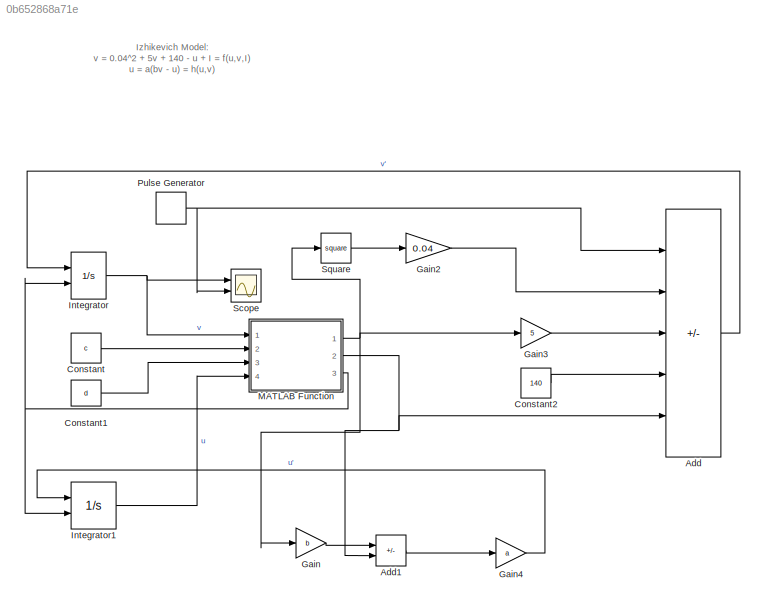
MODEL slx_0b652868a71e
KIND model
CONFIG AbsTol = auto
CONFIG EnableMultiTasking = off
CONFIG FixedStep = auto
CONFIG MaxStep = auto
CONFIG MinStep = auto
CONFIG RelTol = 1e-3
CONFIG SampleTimeConstraint = Unconstrained
CONFIG Solver = VariableStepAuto
CONFIG SolverName = VariableStepAuto
CONFIG StartTime = 0.0
CONFIG StopTime = STOP
BLOCK [Sum] Add
  IconShape = rectangular
  Inputs = ++++-
  Ports = [5, 1]
BLOCK [Sum] Add1
  IconShape = rectangular
  Inputs = +-
  Ports = [2, 1]
BLOCK [Constant] Constant
  Value = c
BLOCK [Constant] Constant1
  Value = d
BLOCK [Constant] Constant2
  Value = 140
BLOCK [Gain] Gain
  Gain = b
BLOCK [Gain] Gain2
  Gain = 0.04
BLOCK [Gain] Gain3
  Gain = 5
BLOCK [Gain] Gain4
  Gain = a
BLOCK [Integrator] Integrator
  ExternalReset = rising
  InitialCondition = c
  LimitOutput = on
  Ports = [2, 1]
  UpperSaturationLimit = 30
BLOCK [Integrator] Integrator1
  ExternalReset = rising
  InitialCondition = d
  LimitOutput = on
  Ports = [2, 1]
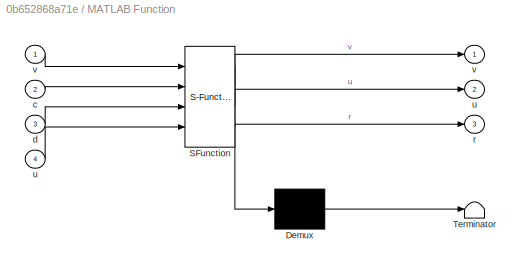
BLOCK [SubSystem] MATLAB Function
  ErrorFcn = Stateflow.Translate.translate
  PermitHierarchicalResolution = ExplicitOnly
  Ports = [4, 3]
  RequestExecContextInheritance = off
  SFBlockType = MATLAB Function
  TreatAsAtomicUnit = on
BLOCK [Demux] MATLAB Function/ Demux 
  Outputs = 1
  Ports = [1, 1]
BLOCK [S-Function] MATLAB Function/ SFunction 
  EnableBusSupport = on
  FunctionName = sf_sfun
  PortCounts = [4 4]
  Ports = [4, 4]
  SFcnIsStateOwnerBlock = off
  SFunctionDeploymentMode = off
  Tag = Stateflow S-Function 2
BLOCK [Terminator] MATLAB Function/ Terminator 
BLOCK [Inport] MATLAB Function/c
  Port = 2
BLOCK [Inport] MATLAB Function/d
  Port = 3
BLOCK [Outport] MATLAB Function/r
  Port = 3
BLOCK [Outport] MATLAB Function/u
  Port = 2
BLOCK [Inport] MATLAB Function/u 
  Port = 4
BLOCK [Outport] MATLAB Function/v
BLOCK [Inport] MATLAB Function/v 
BLOCK [DiscretePulseGenerator] Pulse Generator
  Amplitude = I
  Period = STOP/2
  PhaseDelay = 40
  Ports = [0, 1]
  PulseType = Time based
  PulseWidth = 50
BLOCK [Scope] Scope
  Floating = off
  NumInputPorts = 2
  Ports = [2]
  ScopeSpecificationString = Simulink.scopes.TimeScopeBlockCfg('CurrentConfiguration', extmgr.ConfigurationSet(extmgr.Configuration('Core','General UI',true),extmgr.Configuration('Core','Source UI',true),extmgr.Configuration('Sources','WiredSimulink',true),extmgr.Configuration('Visuals','Time Domain',true,'SerializedDisplays',{struct('MinYLimReal','-99.77065','MaxYLimReal','44.41896','YLabelReal','','MinYLimMag','0.00000','Ma...<+1374ch>
BLOCK [Math] Square
  Operator = square
  Ports = [1, 1]
ANNOTATION (root): Izhikevich Model: v = 0.04^2 + 5v + 140 - u + I = f(u,v,I) u = a(bv - u) = h(u,v)
LINE Add1:1 -> Gain4:1
LINE Add:1 -> Integrator:1
LINE Constant1:1 -> MATLAB Function:3
LINE Constant2:1 -> Add:4
LINE Constant:1 -> MATLAB Function:2
LINE Gain2:1 -> Add:2
LINE Gain3:1 -> Add:3
LINE Gain4:1 -> Integrator1:1
LINE Gain:1 -> Add1:1
LINE Integrator1:1 -> MATLAB Function:4
NET Integrator:1 -> MATLAB Function:1, Scope:1
NET MATLAB Function:1 -> Gain3:1, Gain:1, Square:1
NET MATLAB Function:2 -> Add1:2, Add:5
NET MATLAB Function:3 -> Integrator1:2, Integrator:2
NET Pulse Generator:1 -> Add:1, Scope:2
LINE Square:1 -> Gain2:1
note: NET lines group one-source signal fan-out (src -> all destinations, sorted); 1:1 wires keep LINE
CHART MATLAB Function states=1 transitions=1
  STATE_LABEL 'eML_blk_kernel()'
  STATE_LABEL 'SCRIPT:\nfunction [v,u,r] = fcn(v,c,d,u)\n\nif v>= 30\n    v = c;\n    u = c+d;\n    r = 1;\nelse\n    r=0;\nend\n\ny = u;\n'
CHART  states=0 transitions=0
